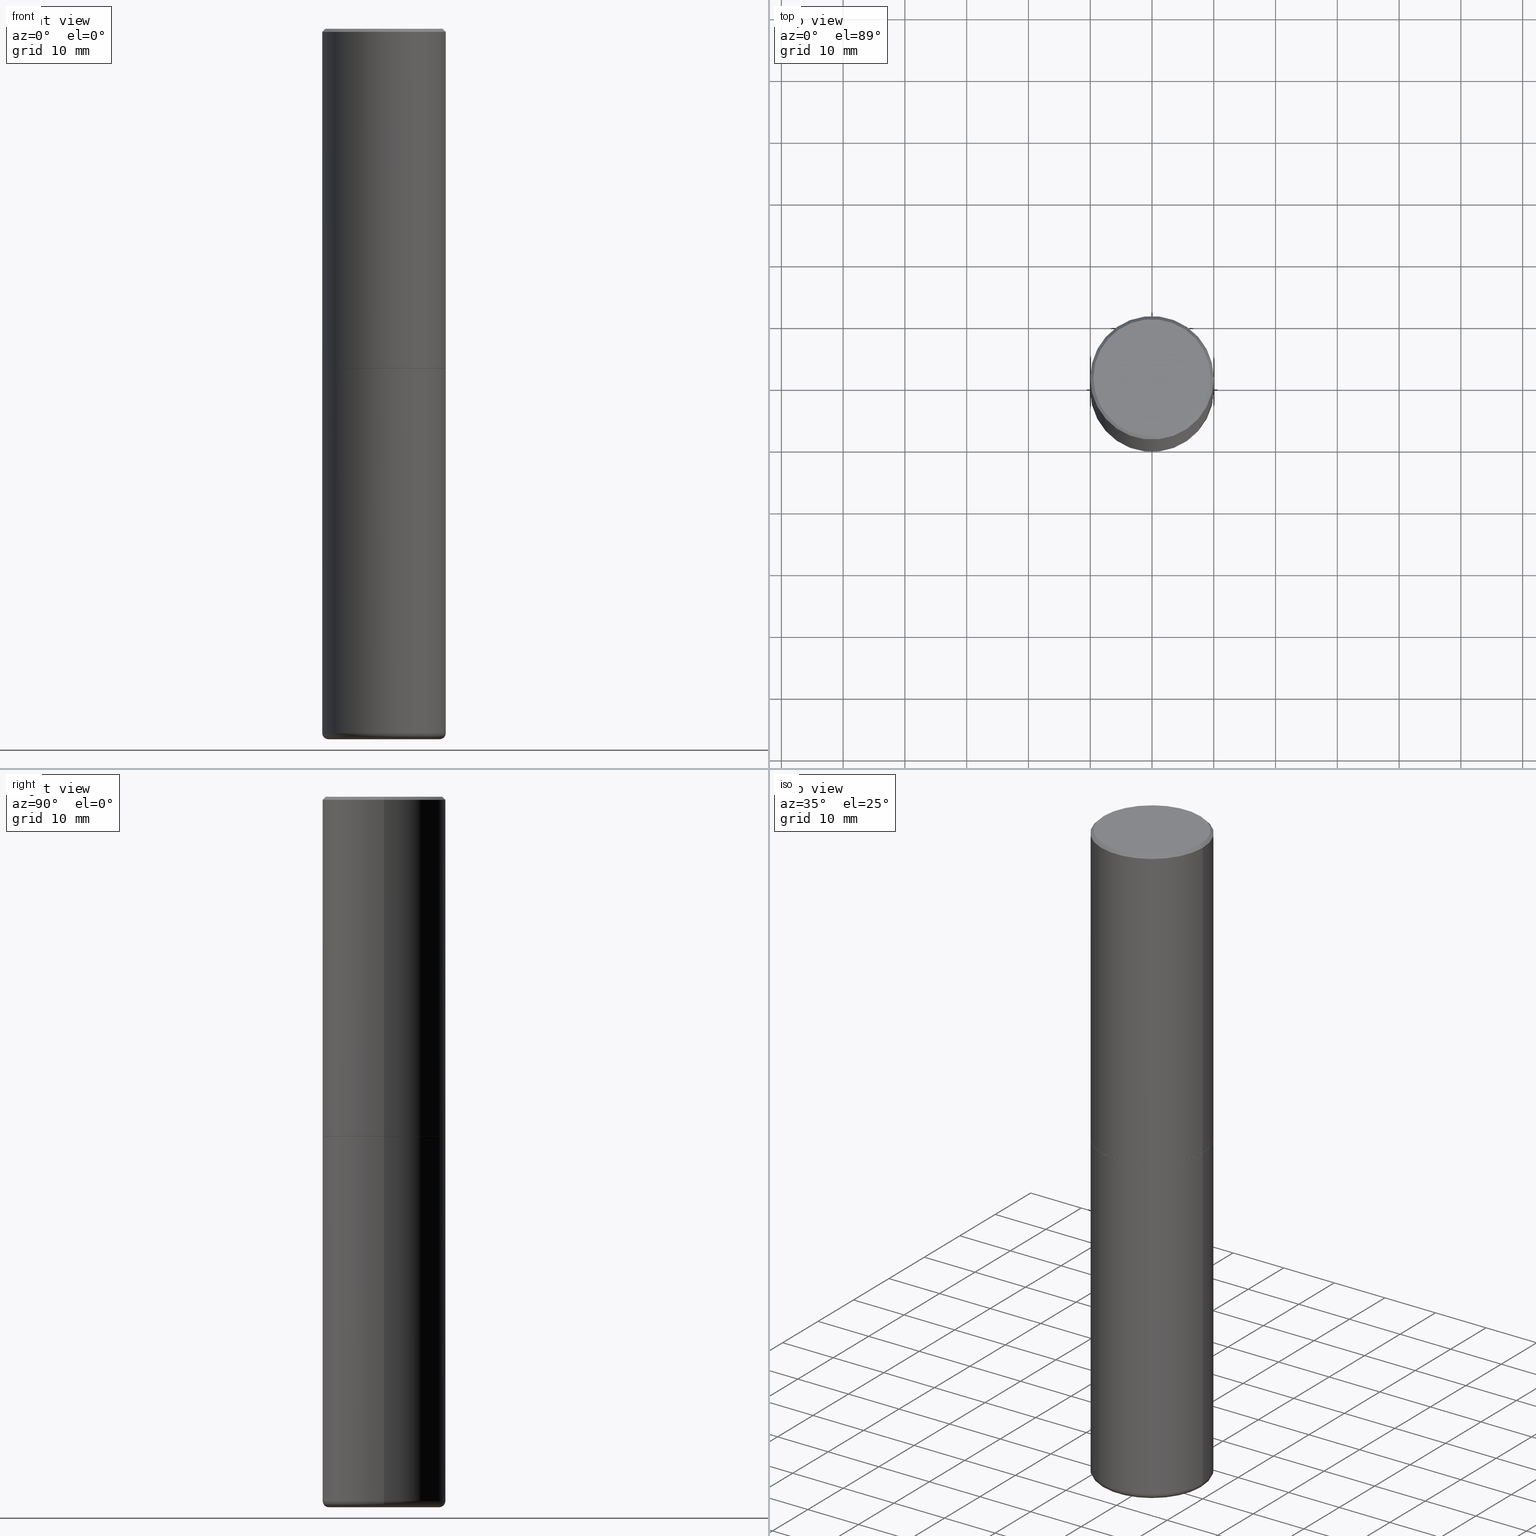
[diagram: canonical four-view strip — front | top / right | iso, engineering-drawing reading convention]
A machine part, canonical four-view strip (front | top / right | iso — engineering-drawing reading convention). The complete STEP part file that produces these views, byte-faithful:
ISO-10303-21;
HEADER;
FILE_DESCRIPTION (( 'STEP AP203' ),
    '1' );
FILE_NAME ('74825.STEP',
    '2024-05-02T19:21:24',
    ( '' ),
    ( '' ),
    'SwSTEP 2.0',
    'SolidWorks 2023',
    '' );
FILE_SCHEMA (( 'CONFIG_CONTROL_DESIGN' ));
ENDSEC;

DATA;
#1 = CIRCLE ( 'NONE', #263, 0.3937000000000002720 ) ;
#2 = APPROVAL_PERSON_ORGANIZATION ( #200, #261, #355 ) ;
#3 = PRODUCT_RELATED_PRODUCT_CATEGORY ( 'detail', '', ( #316 ) ) ;
#4 = LINE ( 'NONE', #9, #206 ) ;
#5 = DIRECTION ( 'NONE',  ( 1.000000000000000000, -6.982962677686268288E-15, 0.000000000000000000 ) ) ;
#6 = CARTESIAN_POINT ( 'NONE',  ( 1.097575309592012950E-28, -1.567046654499580152E-14, -4.488199999999999079 ) ) ;
#7 = CARTESIAN_POINT ( 'NONE',  ( 5.292972684107107621E-29, -7.556962209792102838E-15, -2.164399999999999658 ) ) ;
#8 = CIRCLE ( 'NONE', #145, 0.3937000000000001054 ) ;
#9 = CARTESIAN_POINT ( 'NONE',  ( -0.3926999999999999935, -4.770152367801032067E-15, -2.165399999999999547 ) ) ;
#10 = DIRECTION ( 'NONE',  ( 1.000000000000000000, 0.000000000000000000, 0.000000000000000000 ) ) ;
#11 = ORIENTED_EDGE ( 'NONE', *, *, #184, .T. ) ;
#12 = EDGE_LOOP ( 'NONE', ( #110, #48, #235, #22 ) ) ;
#13 = ADVANCED_BREP_SHAPE_REPRESENTATION ( '74825', ( #346, #197, #416 ), #117 ) ;
#14 = VERTEX_POINT ( 'NONE', #238 ) ;
#15 = VECTOR ( 'NONE', #319, 39.37007874015748143 ) ;
#16 = AXIS2_PLACEMENT_3D ( 'NONE', #143, #175, #26 ) ;
#17 = ORIENTED_EDGE ( 'NONE', *, *, #147, .F. ) ;
#18 = DIRECTION ( 'NONE',  ( -2.445468806185136597E-29, 3.491481338843145583E-15, 1.000000000000000000 ) ) ;
#19 = EDGE_CURVE ( 'NONE', #307, #52, #68, .T. ) ;
#20 = VERTEX_POINT ( 'NONE', #313 ) ;
#21 = DIRECTION ( 'NONE',  ( 1.000000000000000000, -6.982962677686266711E-15, 4.877734241229876808E-29 ) ) ;
#22 = ORIENTED_EDGE ( 'NONE', *, *, #274, .F. ) ;
#23 = AXIS2_PLACEMENT_3D ( 'NONE', #102, #153, #292 ) ;
#24 = EDGE_CURVE ( 'NONE', #165, #272, #380, .T. ) ;
#25 = DIRECTION ( 'NONE',  ( -2.445468806185136597E-29, 3.491481338843145583E-15, 1.000000000000000000 ) ) ;
#26 = DIRECTION ( 'NONE',  ( -1.000000000000000000, 7.105427357601014480E-15, 0.000000000000000000 ) ) ;
#27 = CARTESIAN_POINT ( 'NONE',  ( -0.3937000000000002164, 2.797406750687515970E-15, -1.936584745033357576E-29 ) ) ;
#28 = APPLICATION_CONTEXT ( 'configuration controlled 3d designs of mechanical parts and assemblies' ) ;
#29 = AXIS2_PLACEMENT_3D ( 'NONE', #225, #74, #321 ) ;
#30 = LOCAL_TIME ( 15, 21, 24.00000000000000000, #249 ) ;
#31 = APPLICATION_PROTOCOL_DEFINITION ( 'international standard', 'config_control_design', 1994, #28 ) ;
#32 = PLANE ( 'NONE',  #409 ) ;
#33 = LINE ( 'NONE', #149, #258 ) ;
#34 = CARTESIAN_POINT ( 'NONE',  ( 1.097575309592012950E-28, -1.567046654499580152E-14, -4.488199999999999079 ) ) ;
#35 = CIRCLE ( 'NONE', #251, 0.3937000000000001054 ) ;
#36 = DIRECTION ( 'NONE',  ( 1.000000000000000000, -6.982962677686271444E-15, 4.883557194083114022E-29 ) ) ;
#37 = DIRECTION ( 'NONE',  ( 1.000000000000000000, -6.982962677686266711E-15, 4.877734241229876808E-29 ) ) ;
#38 = CARTESIAN_POINT ( 'NONE',  ( 5.295418152913293224E-29, -7.560453691130945845E-15, -2.165399999999999547 ) ) ;
#39 = LINE ( 'NONE', #262, #151 ) ;
#40 = APPLICATION_CONTEXT ( 'configuration controlled 3d designs of mechanical parts and assemblies' ) ;
#41 = AXIS2_PLACEMENT_3D ( 'NONE', #154, #295, #397 ) ;
#42 = DIRECTION ( 'NONE',  ( -2.445468806185136597E-29, 3.491481338843145583E-15, 1.000000000000000000 ) ) ;
#43 = VERTEX_POINT ( 'NONE', #88 ) ;
#44 = ADVANCED_FACE ( 'NONE', ( #405 ), #188, .T. ) ;
#45 = ORIENTED_EDGE ( 'NONE', *, *, #128, .F. ) ;
#46 = ORIENTED_EDGE ( 'NONE', *, *, #66, .T. ) ;
#47 = CARTESIAN_POINT ( 'NONE',  ( 4.890937612370294178E-31, -6.982962677686321191E-17, -0.02000000000000008715 ) ) ;
#48 = ORIENTED_EDGE ( 'NONE', *, *, #186, .T. ) ;
#49 = DIRECTION ( 'NONE',  ( 1.000000000000000000, -6.982962677686265133E-15, 0.000000000000000000 ) ) ;
#50 = AXIS2_PLACEMENT_3D ( 'NONE', #34, #150, #332 ) ;
#51 = APPROVAL_PERSON_ORGANIZATION ( #59, #159, #412 ) ;
#52 = VERTEX_POINT ( 'NONE', #172 ) ;
#53 = PERSON_AND_ORGANIZATION ( #103, #70 ) ;
#54 = CC_DESIGN_PERSON_AND_ORGANIZATION_ASSIGNMENT ( #404, #239, ( #316 ) ) ;
#55 = VERTEX_POINT ( 'NONE', #162 ) ;
#56 = PRODUCT_DEFINITION_SHAPE ( 'NONE', 'NONE',  #255 ) ;
#57 = COORDINATED_UNIVERSAL_TIME_OFFSET ( 5, 0, .BEHIND. ) ;
#58 = AXIS2_PLACEMENT_3D ( 'NONE', #158, #333, #227 ) ;
#59 = PERSON_AND_ORGANIZATION ( #103, #70 ) ;
#60 = APPROVAL_DATE_TIME ( #140, #261 ) ;
#61 = PLANE ( 'NONE',  #401 ) ;
#62 = EDGE_CURVE ( 'NONE', #43, #167, #395, .T. ) ;
#63 = CIRCLE ( 'NONE', #16, 0.03940000000000005997 ) ;
#64 = FACE_OUTER_BOUND ( 'NONE', #318, .T. ) ;
#65 = DIRECTION ( 'NONE',  ( -0.7071067811866199593, 7.493145998870616062E-15, 0.7071067811864750752 ) ) ;
#66 = EDGE_CURVE ( 'NONE', #307, #402, #232, .T. ) ;
#67 = DIRECTION ( 'NONE',  ( -2.445468806185136877E-29, 3.491481338843145188E-15, 1.000000000000000000 ) ) ;
#68 = CIRCLE ( 'NONE', #342, 0.3937000000000002720 ) ;
#69 = DIRECTION ( 'NONE',  ( -1.000000000000000000, 6.982962677686266711E-15, 0.000000000000000000 ) ) ;
#70 = ORGANIZATION ( 'UNSPECIFIED', 'UNSPECIFIED', '' ) ;
#71 = ADVANCED_FACE ( 'NONE', ( #328 ), #32, .F. ) ;
#72 = CARTESIAN_POINT ( 'NONE',  ( 2.609533152651356620E-15, 0.3736999999999999211, -1.191650995338022328E-15 ) ) ;
#73 = FACE_OUTER_BOUND ( 'NONE', #275, .T. ) ;
#74 = DIRECTION ( 'NONE',  ( -2.445468806185136597E-29, 3.491481338843145583E-15, 1.000000000000000000 ) ) ;
#75 = CYLINDRICAL_SURFACE ( 'NONE', #285, 0.3937000000000002164 ) ;
#76 = DATE_TIME_ROLE ( 'creation_date' ) ;
#77 = TOROIDAL_SURFACE ( 'NONE', #181, 0.3543000000000000038, 0.03940000000000005997 ) ;
#78 = DIRECTION ( 'NONE',  ( 1.000000000000000000, -6.982962677686266711E-15, 0.000000000000000000 ) ) ;
#79 = ORIENTED_EDGE ( 'NONE', *, *, #253, .T. ) ;
#80 = CALENDAR_DATE ( 2024, 2, 5 ) ;
#81 = ORIENTED_EDGE ( 'NONE', *, *, #147, .T. ) ;
#82 = COORDINATED_UNIVERSAL_TIME_OFFSET ( 5, 0, .BEHIND. ) ;
#83 = CARTESIAN_POINT ( 'NONE',  ( 5.295418152913293224E-29, -7.560453691130945845E-15, -2.165399999999999547 ) ) ;
#84 = DATE_AND_TIME ( #378, #364 ) ;
#85 = AXIS2_PLACEMENT_3D ( 'NONE', #6, #217, #124 ) ;
#86 = CIRCLE ( 'NONE', #41, 0.03940000000000005997 ) ;
#87 = CARTESIAN_POINT ( 'NONE',  ( 5.295418152913293224E-29, -7.560453691130945845E-15, -2.165399999999999547 ) ) ;
#88 = CARTESIAN_POINT ( 'NONE',  ( 0.3736999999999999211, -2.667287895133367964E-15, 2.262311619753402158E-16 ) ) ;
#89 = ORIENTED_EDGE ( 'NONE', *, *, #248, .T. ) ;
#90 = CC_DESIGN_PERSON_AND_ORGANIZATION_ASSIGNMENT ( #142, #174, ( #335 ) ) ;
#91 = DIRECTION ( 'NONE',  ( -0.7071067811865454633, 2.468850131082235367E-15, -0.7071067811865495711 ) ) ;
#92 = DIRECTION ( 'NONE',  ( -2.445468806185136877E-29, 3.491481338843145188E-15, 1.000000000000000000 ) ) ;
#93 = DIRECTION ( 'NONE',  ( 1.000000000000000000, -6.982962677686266711E-15, 4.876176775795935793E-29 ) ) ;
#94 = TOROIDAL_SURFACE ( 'NONE', #334, 0.3543000000000000038, 0.03940000000000005997 ) ;
#95 = CC_DESIGN_APPROVAL ( #286, ( #255 ) ) ;
#96 = DIRECTION ( 'NONE',  ( -2.445468806185136597E-29, 3.491481338843145583E-15, 1.000000000000000000 ) ) ;
#97 = CARTESIAN_POINT ( 'NONE',  ( 0.3937000000000000499, -1.030964609733602906E-14, -2.165399999999999547 ) ) ;
#98 = FACE_OUTER_BOUND ( 'NONE', #338, .T. ) ;
#99 = CARTESIAN_POINT ( 'NONE',  ( -0.3937000000000000499, -8.818053367375859687E-15, -2.165399999999999547 ) ) ;
#100 = DIRECTION ( 'NONE',  ( -1.000000000000000000, 6.982962677686265922E-15, -4.876176775795935793E-29 ) ) ;
#101 = CIRCLE ( 'NONE', #108, 0.3937000000000000499 ) ;
#102 = CARTESIAN_POINT ( 'NONE',  ( 0.000000000000000000, 0.000000000000000000, 0.000000000000000000 ) ) ;
#103 = PERSON ( 'UNSPECIFIED', 'UNSPECIFIED', 'UNSPECIFIED', ('UNSPECIFIED'), ('UNSPECIFIED'), ('UNSPECIFIED') ) ;
#104 = CYLINDRICAL_SURFACE ( 'NONE', #29, 0.3937000000000000499 ) ;
#105 = ORIENTED_EDGE ( 'NONE', *, *, #407, .T. ) ;
#106 = ORIENTED_EDGE ( 'NONE', *, *, #128, .T. ) ;
#107 = DIMENSIONAL_EXPONENTS ( 1.000000000000000000, 0.000000000000000000, 0.000000000000000000, 0.000000000000000000, 0.000000000000000000, 0.000000000000000000, 0.000000000000000000 ) ;
#108 = AXIS2_PLACEMENT_3D ( 'NONE', #83, #340, #49 ) ;
#109 = EDGE_LOOP ( 'NONE', ( #131, #135, #277, #170 ) ) ;
#110 = ORIENTED_EDGE ( 'NONE', *, *, #208, .F. ) ;
#111 = ORIENTED_EDGE ( 'NONE', *, *, #398, .F. ) ;
#112 = CARTESIAN_POINT ( 'NONE',  ( -0.3543000000000000038, -1.308181889562823723E-14, -4.527599999999999625 ) ) ;
#113 = EDGE_LOOP ( 'NONE', ( #400, #408, #79, #269 ) ) ;
#114 = FACE_OUTER_BOUND ( 'NONE', #209, .T. ) ;
#115 = LINE ( 'NONE', #250, #390 ) ;
#116 = CIRCLE ( 'NONE', #415, 0.3926999999999999935 ) ;
#117 =( GEOMETRIC_REPRESENTATION_CONTEXT ( 3 ) GLOBAL_UNCERTAINTY_ASSIGNED_CONTEXT ( ( #180 ) ) GLOBAL_UNIT_ASSIGNED_CONTEXT ( ( #393, #354, #283 ) ) REPRESENTATION_CONTEXT ( 'NONE', 'WORKASPACE' ) );
#118 = ADVANCED_FACE ( 'NONE', ( #187 ), #288, .T. ) ;
#119 = EDGE_CURVE ( 'NONE', #371, #52, #4, .T. ) ;
#120 = DIRECTION ( 'NONE',  ( 1.000000000000000000, -6.982962677686265922E-15, 4.876176775795935793E-29 ) ) ;
#121 = DIRECTION ( 'NONE',  ( -2.445468806185136597E-29, 3.491481338843145583E-15, 1.000000000000000000 ) ) ;
#122 = CLOSED_SHELL ( 'NONE', ( #304, #156, #196, #254, #300, #290 ) ) ;
#123 = CARTESIAN_POINT ( 'NONE',  ( 1.097575309592012950E-28, -1.567046654499580152E-14, -4.488199999999999079 ) ) ;
#124 = DIRECTION ( 'NONE',  ( 1.000000000000000000, -6.982962677686262766E-15, 0.000000000000000000 ) ) ;
#125 = DIRECTION ( 'NONE',  ( -1.000000000000000000, 6.982962677686265922E-15, -4.876176775795935793E-29 ) ) ;
#126 = AXIS2_PLACEMENT_3D ( 'NONE', #148, #127, #326 ) ;
#127 = DIRECTION ( 'NONE',  ( -2.445468806185136597E-29, 3.491481338843145583E-15, 1.000000000000000000 ) ) ;
#128 = EDGE_CURVE ( 'NONE', #272, #165, #241, .T. ) ;
#129 = ORIENTED_EDGE ( 'NONE', *, *, #193, .T. ) ;
#130 = ORIENTED_EDGE ( 'NONE', *, *, #257, .F. ) ;
#131 = ORIENTED_EDGE ( 'NONE', *, *, #19, .T. ) ;
#132 = ORIENTED_EDGE ( 'NONE', *, *, #164, .T. ) ;
#133 = PERSON_AND_ORGANIZATION ( #103, #70 ) ;
#134 = VECTOR ( 'NONE', #92, 39.37007874015748143 ) ;
#135 = ORIENTED_EDGE ( 'NONE', *, *, #418, .T. ) ;
#136 = DIRECTION ( 'NONE',  ( -2.445468806185136597E-29, 3.491481338843145583E-15, 1.000000000000000000 ) ) ;
#137 = ORIENTED_EDGE ( 'NONE', *, *, #24, .T. ) ;
#138 = SECURITY_CLASSIFICATION_LEVEL ( 'unclassified' ) ;
#139 = EDGE_LOOP ( 'NONE', ( #374, #129, #376, #201 ) ) ;
#140 = DATE_AND_TIME ( #381, #146 ) ;
#141 = CARTESIAN_POINT ( 'NONE',  ( 1.107210456688382298E-28, -1.580803090974622389E-14, -4.527599999999999625 ) ) ;
#142 = PERSON_AND_ORGANIZATION ( #103, #70 ) ;
#143 = CARTESIAN_POINT ( 'NONE',  ( -0.3543000000000000038, -1.315301363219776772E-14, -4.488199999999999079 ) ) ;
#144 = CYLINDRICAL_SURFACE ( 'NONE', #273, 0.3937000000000000499 ) ;
#145 = AXIS2_PLACEMENT_3D ( 'NONE', #312, #18, #157 ) ;
#146 = LOCAL_TIME ( 15, 21, 24.00000000000000000, #352 ) ;
#147 = EDGE_CURVE ( 'NONE', #20, #371, #310, .T. ) ;
#148 = CARTESIAN_POINT ( 'NONE',  ( 1.107210456688382298E-28, -1.580803090974622389E-14, -4.527599999999999625 ) ) ;
#149 = CARTESIAN_POINT ( 'NONE',  ( 0.3926999999999999935, -1.030266313465834305E-14, -2.165399999999999547 ) ) ;
#150 = DIRECTION ( 'NONE',  ( -2.445468806185136597E-29, 3.491481338843145583E-15, 1.000000000000000000 ) ) ;
#151 = VECTOR ( 'NONE', #396, 39.37007874015748143 ) ;
#152 = DIRECTION ( 'NONE',  ( -2.445468806185136597E-29, 3.491481338843145583E-15, 1.000000000000000000 ) ) ;
#153 = DIRECTION ( 'NONE',  ( -2.445468806185136597E-29, 3.491481338843145583E-15, 1.000000000000000000 ) ) ;
#154 = CARTESIAN_POINT ( 'NONE',  ( 0.3543000000000000038, -1.814453022170004631E-14, -4.488199999999999079 ) ) ;
#155 = DIRECTION ( 'NONE',  ( 2.438088387897960049E-29, -3.491481338843145188E-15, -1.000000000000000000 ) ) ;
#156 = ADVANCED_FACE ( 'NONE', ( #73 ), #77, .T. ) ;
#157 = DIRECTION ( 'NONE',  ( 1.000000000000000000, -6.982962677686266711E-15, 0.000000000000000000 ) ) ;
#158 = CARTESIAN_POINT ( 'NONE',  ( 5.295418152913293224E-29, -7.560453691130945845E-15, -2.165399999999999547 ) ) ;
#159 = APPROVAL ( #281, 'UNSPECIFIED' ) ;
#160 = CLOSED_SHELL ( 'NONE', ( #226, #118, #44, #361, #244, #351, #350, #71 ) ) ;
#161 = VERTEX_POINT ( 'NONE', #256 ) ;
#162 = CARTESIAN_POINT ( 'NONE',  ( -0.3937000000000001054, 2.679362779428220707E-15, -0.02000000000000008715 ) ) ;
#163 = ORIENTED_EDGE ( 'NONE', *, *, #24, .F. ) ;
#164 = EDGE_CURVE ( 'NONE', #52, #307, #1, .T. ) ;
#165 = VERTEX_POINT ( 'NONE', #331 ) ;
#166 = ORIENTED_EDGE ( 'NONE', *, *, #274, .T. ) ;
#167 = VERTEX_POINT ( 'NONE', #294 ) ;
#168 = CIRCLE ( 'NONE', #85, 0.3937000000000000499 ) ;
#169 = LOCAL_TIME ( 15, 21, 24.00000000000000000, #57 ) ;
#170 = ORIENTED_EDGE ( 'NONE', *, *, #66, .F. ) ;
#171 = DIRECTION ( 'NONE',  ( 2.438088387897960049E-29, -3.491481338843145188E-15, -1.000000000000000000 ) ) ;
#172 = CARTESIAN_POINT ( 'NONE',  ( -0.3937000000000002720, -1.015989167596965718E-15, -2.164399999999999658 ) ) ;
#173 = ORIENTED_EDGE ( 'NONE', *, *, #208, .T. ) ;
#174 = PERSON_AND_ORGANIZATION_ROLE ( 'classification_officer' ) ;
#175 = DIRECTION ( 'NONE',  ( 7.105427357601001859E-15, 1.000000000000000000, -3.491481338843145583E-15 ) ) ;
#176 = CIRCLE ( 'NONE', #252, 0.3736999999999999211 ) ;
#177 = LINE ( 'NONE', #322, #15 ) ;
#178 = CARTESIAN_POINT ( 'NONE',  ( 5.295418152913293224E-29, -7.560453691130945845E-15, -2.165399999999999547 ) ) ;
#179 = CC_DESIGN_PERSON_AND_ORGANIZATION_ASSIGNMENT ( #53, #315, ( #343 ) ) ;
#180 = UNCERTAINTY_MEASURE_WITH_UNIT (LENGTH_MEASURE( 1.000000000000000082E-05 ), #393, 'distance_accuracy_value', 'NONE');
#181 = AXIS2_PLACEMENT_3D ( 'NONE', #123, #121, #36 ) ;
#182 = DATE_AND_TIME ( #385, #30 ) ;
#183 = CARTESIAN_POINT ( 'NONE',  ( 4.890937612370294178E-31, -6.982962677686321191E-17, -0.02000000000000008715 ) ) ;
#184 = EDGE_CURVE ( 'NONE', #14, #161, #168, .T. ) ;
#185 = DIRECTION ( 'NONE',  ( 1.000000000000000000, -6.982962677686266711E-15, 0.000000000000000000 ) ) ;
#186 = EDGE_CURVE ( 'NONE', #161, #14, #234, .T. ) ;
#187 = FACE_OUTER_BOUND ( 'NONE', #109, .T. ) ;
#188 = CONICAL_SURFACE ( 'NONE', #363, 0.3937000000000001054, 0.7853981633974453924 ) ;
#189 = AXIS2_PLACEMENT_3D ( 'NONE', #357, #287, #69 ) ;
#190 = CC_DESIGN_APPROVAL ( #159, ( #335 ) ) ;
#191 = CARTESIAN_POINT ( 'NONE',  ( -5.532412495976664402E-45, 7.898818803016371119E-31, 2.262311619753217762E-16 ) ) ;
#192 = CARTESIAN_POINT ( 'NONE',  ( 0.000000000000000000, 0.000000000000000000, 0.000000000000000000 ) ) ;
#193 = EDGE_CURVE ( 'NONE', #371, #20, #116, .T. ) ;
#194 = CARTESIAN_POINT ( 'NONE',  ( 5.295418152913293224E-29, -7.560453691130945845E-15, -2.165399999999999547 ) ) ;
#195 = DIRECTION ( 'NONE',  ( -2.445468806185136597E-29, 3.491481338843145583E-15, 1.000000000000000000 ) ) ;
#196 = ADVANCED_FACE ( 'NONE', ( #98 ), #360, .F. ) ;
#197 = MANIFOLD_SOLID_BREP ( 'Body-Move/Copy2[2]', #160 ) ;
#198 = CARTESIAN_POINT ( 'NONE',  ( 0.000000000000000000, 0.000000000000000000, 0.000000000000000000 ) ) ;
#199 = ORIENTED_EDGE ( 'NONE', *, *, #366, .T. ) ;
#200 = PERSON_AND_ORGANIZATION ( #103, #70 ) ;
#201 = ORIENTED_EDGE ( 'NONE', *, *, #164, .F. ) ;
#202 = APPROVAL_DATE_TIME ( #230, #286 ) ;
#203 = EDGE_LOOP ( 'NONE', ( #11, #173, #240, #111 ) ) ;
#204 = PERSON_AND_ORGANIZATION ( #103, #70 ) ;
#205 = ORIENTED_EDGE ( 'NONE', *, *, #366, .F. ) ;
#206 = VECTOR ( 'NONE', #65, 39.37007874015748143 ) ;
#207 = PLANE ( 'NONE',  #278 ) ;
#208 = EDGE_CURVE ( 'NONE', #161, #383, #39, .T. ) ;
#209 = EDGE_LOOP ( 'NONE', ( #163, #45 ) ) ;
#210 = CC_DESIGN_DATE_AND_TIME_ASSIGNMENT ( #384, #320, ( #335 ) ) ;
#211 = ORIENTED_EDGE ( 'NONE', *, *, #418, .F. ) ;
#212 = CARTESIAN_POINT ( 'NONE',  ( 0.000000000000000000, 0.000000000000000000, 0.000000000000000000 ) ) ;
#213 = AXIS2_PLACEMENT_3D ( 'NONE', #358, #325, #5 ) ;
#214 = FACE_OUTER_BOUND ( 'NONE', #336, .T. ) ;
#215 = AXIS2_PLACEMENT_3D ( 'NONE', #194, #220, #365 ) ;
#216 = LOCAL_TIME ( 15, 21, 24.00000000000000000, #82 ) ;
#217 = DIRECTION ( 'NONE',  ( -2.445468806185136597E-29, 3.491481338843145583E-15, 1.000000000000000000 ) ) ;
#218 = DIRECTION ( 'NONE',  ( 0.7071067811866199593, -2.468850131083015945E-15, 0.7071067811864750752 ) ) ;
#219 = CARTESIAN_POINT ( 'NONE',  ( 0.3937000000000000499, -2.749192406205083217E-15, 1.919750796630860172E-29 ) ) ;
#220 = DIRECTION ( 'NONE',  ( -2.445468806185136597E-29, 3.491481338843145583E-15, 1.000000000000000000 ) ) ;
#221 = AXIS2_PLACEMENT_3D ( 'NONE', #38, #155, #125 ) ;
#222 = LINE ( 'NONE', #27, #134 ) ;
#223 =( LENGTH_UNIT ( ) NAMED_UNIT ( * ) SI_UNIT ( $, .METRE. ) );
#224 = DIRECTION ( 'NONE',  ( 1.000000000000000000, -6.982962677686269077E-15, 0.000000000000000000 ) ) ;
#225 = CARTESIAN_POINT ( 'NONE',  ( 0.000000000000000000, 0.000000000000000000, 0.000000000000000000 ) ) ;
#226 = ADVANCED_FACE ( 'NONE', ( #367 ), #298, .T. ) ;
#227 = DIRECTION ( 'NONE',  ( 1.000000000000000000, -6.982962677686268288E-15, 0.000000000000000000 ) ) ;
#228 = ORIENTED_EDGE ( 'NONE', *, *, #271, .F. ) ;
#229 = SHAPE_DEFINITION_REPRESENTATION ( #56, #13 ) ;
#230 = DATE_AND_TIME ( #80, #216 ) ;
#231 = ORIENTED_EDGE ( 'NONE', *, *, #271, .T. ) ;
#232 = LINE ( 'NONE', #306, #329 ) ;
#233 = ORIENTED_EDGE ( 'NONE', *, *, #119, .T. ) ;
#234 = CIRCLE ( 'NONE', #50, 0.3937000000000000499 ) ;
#235 = ORIENTED_EDGE ( 'NONE', *, *, #398, .T. ) ;
#236 = DESIGN_CONTEXT ( 'detailed design', #40, 'design' ) ;
#237 = ORIENTED_EDGE ( 'NONE', *, *, #308, .T. ) ;
#238 = CARTESIAN_POINT ( 'NONE',  ( 0.3937000000000001054, -1.841965895120088790E-14, -4.488199999999999079 ) ) ;
#239 = PERSON_AND_ORGANIZATION_ROLE ( 'design_owner' ) ;
#240 = ORIENTED_EDGE ( 'NONE', *, *, #248, .F. ) ;
#241 = CIRCLE ( 'NONE', #126, 0.3543000000000000038 ) ;
#242 = FACE_OUTER_BOUND ( 'NONE', #268, .T. ) ;
#243 = CC_DESIGN_SECURITY_CLASSIFICATION ( #335, ( #343 ) ) ;
#244 = ADVANCED_FACE ( 'NONE', ( #368 ), #75, .T. ) ;
#245 = ORIENTED_EDGE ( 'NONE', *, *, #414, .F. ) ;
#246 = CALENDAR_DATE ( 2024, 2, 5 ) ;
#247 = FACE_OUTER_BOUND ( 'NONE', #203, .T. ) ;
#248 = EDGE_CURVE ( 'NONE', #403, #383, #101, .T. ) ;
#249 = COORDINATED_UNIVERSAL_TIME_OFFSET ( 5, 0, .BEHIND. ) ;
#250 = CARTESIAN_POINT ( 'NONE',  ( -0.3937000000000001054, 2.679362779428220707E-15, -0.02000000000000008715 ) ) ;
#251 = AXIS2_PLACEMENT_3D ( 'NONE', #183, #152, #185 ) ;
#252 = AXIS2_PLACEMENT_3D ( 'NONE', #191, #330, #37 ) ;
#253 = EDGE_CURVE ( 'NONE', #402, #55, #8, .T. ) ;
#254 = ADVANCED_FACE ( 'NONE', ( #297 ), #104, .T. ) ;
#255 = PRODUCT_DEFINITION ( 'UNKNOWN', '', #343, #236 ) ;
#256 = CARTESIAN_POINT ( 'NONE',  ( -0.3937000000000001054, -1.287305979430828910E-14, -4.488199999999999079 ) ) ;
#257 = EDGE_CURVE ( 'NONE', #43, #402, #177, .T. ) ;
#258 = VECTOR ( 'NONE', #218, 39.37007874015748143 ) ;
#259 = CARTESIAN_POINT ( 'NONE',  ( 5.295418152913293224E-29, -7.560453691130945845E-15, -2.165399999999999547 ) ) ;
#260 = DIRECTION ( 'NONE',  ( 1.000000000000000000, -6.982962677686268288E-15, 0.000000000000000000 ) ) ;
#261 = APPROVAL ( #348, 'UNSPECIFIED' ) ;
#262 = CARTESIAN_POINT ( 'NONE',  ( -0.3937000000000000499, 2.797406750687514786E-15, -1.936584745033356735E-29 ) ) ;
#263 = AXIS2_PLACEMENT_3D ( 'NONE', #7, #96, #224 ) ;
#264 = DIRECTION ( 'NONE',  ( 1.000000000000000000, -6.982962677686269077E-15, 0.000000000000000000 ) ) ;
#265 = APPROVAL_ROLE ( '' ) ;
#266 = APPROVAL_DATE_TIME ( #182, #159 ) ;
#267 = APPROVAL_STATUS ( 'not_yet_approved' ) ;
#268 = EDGE_LOOP ( 'NONE', ( #228, #106, #399, #369 ) ) ;
#269 = ORIENTED_EDGE ( 'NONE', *, *, #308, .F. ) ;
#270 = MECHANICAL_CONTEXT ( 'NONE', #28, 'mechanical' ) ;
#271 = EDGE_CURVE ( 'NONE', #272, #161, #63, .T. ) ;
#272 = VERTEX_POINT ( 'NONE', #112 ) ;
#273 = AXIS2_PLACEMENT_3D ( 'NONE', #212, #282, #413 ) ;
#274 = EDGE_CURVE ( 'NONE', #383, #403, #359, .T. ) ;
#275 = EDGE_LOOP ( 'NONE', ( #137, #231, #303, #245 ) ) ;
#276 = ORIENTED_EDGE ( 'NONE', *, *, #19, .F. ) ;
#277 = ORIENTED_EDGE ( 'NONE', *, *, #253, .F. ) ;
#278 = AXIS2_PLACEMENT_3D ( 'NONE', #141, #171, #356 ) ;
#279 = CARTESIAN_POINT ( 'NONE',  ( 1.097575309592012950E-28, -1.567046654499580152E-14, -4.488199999999999079 ) ) ;
#280 = APPROVAL_PERSON_ORGANIZATION ( #133, #286, #265 ) ;
#281 = APPROVAL_STATUS ( 'not_yet_approved' ) ;
#282 = DIRECTION ( 'NONE',  ( -2.445468806185136597E-29, 3.491481338843145583E-15, 1.000000000000000000 ) ) ;
#283 =( NAMED_UNIT ( * ) SI_UNIT ( $, .STERADIAN. ) SOLID_ANGLE_UNIT ( ) );
#284 = CC_DESIGN_PERSON_AND_ORGANIZATION_ASSIGNMENT ( #388, #344, ( #343 ) ) ;
#285 = AXIS2_PLACEMENT_3D ( 'NONE', #198, #42, #93 ) ;
#286 = APPROVAL ( #267, 'UNSPECIFIED' ) ;
#287 = DIRECTION ( 'NONE',  ( 2.445468806185136597E-29, -3.491481338843145583E-15, -1.000000000000000000 ) ) ;
#288 = CYLINDRICAL_SURFACE ( 'NONE', #23, 0.3937000000000002164 ) ;
#289 = LINE ( 'NONE', #219, #299 ) ;
#290 = ADVANCED_FACE ( 'NONE', ( #114 ), #207, .T. ) ;
#291 = AXIS2_PLACEMENT_3D ( 'NONE', #87, #25, #345 ) ;
#292 = DIRECTION ( 'NONE',  ( 1.000000000000000000, -6.982962677686266711E-15, 4.876176775795935793E-29 ) ) ;
#293 = CARTESIAN_POINT ( 'NONE',  ( -0.3926999999999999935, -4.764853913452808876E-15, -2.165399999999999547 ) ) ;
#294 = CARTESIAN_POINT ( 'NONE',  ( -0.3736999999999999211, 2.644447966039789453E-15, 2.262311619753034352E-16 ) ) ;
#295 = DIRECTION ( 'NONE',  ( -6.982962677686266711E-15, -1.000000000000000000, 3.491481338843145583E-15 ) ) ;
#296 = DIRECTION ( 'NONE',  ( 0.000000000000000000, 0.000000000000000000, 1.000000000000000000 ) ) ;
#297 = FACE_OUTER_BOUND ( 'NONE', #12, .T. ) ;
#298 = CONICAL_SURFACE ( 'NONE', #58, 0.3926999999999999935, 0.7853981633975507526 ) ;
#299 = VECTOR ( 'NONE', #391, 39.37007874015748143 ) ;
#300 = ADVANCED_FACE ( 'NONE', ( #242 ), #94, .T. ) ;
#301 = ORIENTED_EDGE ( 'NONE', *, *, #389, .F. ) ;
#302 = DIRECTION ( 'NONE',  ( -2.445468806185136597E-29, 3.491481338843145583E-15, 1.000000000000000000 ) ) ;
#303 = ORIENTED_EDGE ( 'NONE', *, *, #184, .F. ) ;
#304 = ADVANCED_FACE ( 'NONE', ( #247 ), #144, .T. ) ;
#305 = EDGE_LOOP ( 'NONE', ( #105, #406 ) ) ;
#306 = CARTESIAN_POINT ( 'NONE',  ( 0.3937000000000002164, -2.749192406205084794E-15, 1.919750796630861012E-29 ) ) ;
#307 = VERTEX_POINT ( 'NONE', #387 ) ;
#308 = EDGE_CURVE ( 'NONE', #167, #55, #115, .T. ) ;
#309 = ORIENTED_EDGE ( 'NONE', *, *, #407, .F. ) ;
#310 = CIRCLE ( 'NONE', #215, 0.3926999999999999935 ) ;
#311 = CC_DESIGN_APPROVAL ( #261, ( #343 ) ) ;
#312 = CARTESIAN_POINT ( 'NONE',  ( 4.890937612370294178E-31, -6.982962677686321191E-17, -0.02000000000000008715 ) ) ;
#313 = CARTESIAN_POINT ( 'NONE',  ( 0.3926999999999999935, -1.030266313465834305E-14, -2.165399999999999547 ) ) ;
#314 = EDGE_LOOP ( 'NONE', ( #211, #132, #46, #205 ) ) ;
#315 = PERSON_AND_ORGANIZATION_ROLE ( 'design_supplier' ) ;
#316 = PRODUCT ( '74825', '74825', '', ( #270 ) ) ;
#317 = CARTESIAN_POINT ( 'NONE',  ( -5.532412495976664402E-45, 7.898818803016371119E-31, 2.262311619753217762E-16 ) ) ;
#318 = EDGE_LOOP ( 'NONE', ( #130, #309, #237, #199 ) ) ;
#319 = DIRECTION ( 'NONE',  ( 0.7071067811865454633, -7.319954787623248157E-15, -0.7071067811865495711 ) ) ;
#320 = DATE_TIME_ROLE ( 'classification_date' ) ;
#321 = DIRECTION ( 'NONE',  ( 1.000000000000000000, -6.982962677686265922E-15, 4.876176775795935793E-29 ) ) ;
#322 = CARTESIAN_POINT ( 'NONE',  ( 0.3937000000000001054, -2.770807688499516128E-15, -0.02000000000000008715 ) ) ;
#323 = DIRECTION ( 'NONE',  ( -2.438088387897960049E-29, 3.491481338843145188E-15, 1.000000000000000000 ) ) ;
#324 = AXIS2_PLACEMENT_3D ( 'NONE', #373, #136, #78 ) ;
#325 = DIRECTION ( 'NONE',  ( -2.445468806185136597E-29, 3.491481338843145583E-15, 1.000000000000000000 ) ) ;
#326 = DIRECTION ( 'NONE',  ( 1.000000000000000000, -6.982962677686266711E-15, 0.000000000000000000 ) ) ;
#327 = FACE_OUTER_BOUND ( 'NONE', #139, .T. ) ;
#328 = FACE_OUTER_BOUND ( 'NONE', #305, .T. ) ;
#329 = VECTOR ( 'NONE', #67, 39.37007874015748143 ) ;
#330 = DIRECTION ( 'NONE',  ( -2.445468806185136597E-29, 3.491481338843145583E-15, 1.000000000000000000 ) ) ;
#331 = CARTESIAN_POINT ( 'NONE',  ( 0.3543000000000000038, -1.828209458645046868E-14, -4.527599999999999625 ) ) ;
#332 = DIRECTION ( 'NONE',  ( 1.000000000000000000, -6.982962677686262766E-15, 0.000000000000000000 ) ) ;
#333 = DIRECTION ( 'NONE',  ( -2.445468806185136597E-29, 3.491481338843145583E-15, 1.000000000000000000 ) ) ;
#334 = AXIS2_PLACEMENT_3D ( 'NONE', #279, #410, #382 ) ;
#335 = SECURITY_CLASSIFICATION ( '', '', #138 ) ;
#336 = EDGE_LOOP ( 'NONE', ( #17, #337 ) ) ;
#337 = ORIENTED_EDGE ( 'NONE', *, *, #193, .F. ) ;
#338 = EDGE_LOOP ( 'NONE', ( #89, #166 ) ) ;
#339 = COORDINATED_UNIVERSAL_TIME_OFFSET ( 5, 0, .BEHIND. ) ;
#340 = DIRECTION ( 'NONE',  ( -2.445468806185136597E-29, 3.491481338843145583E-15, 1.000000000000000000 ) ) ;
#341 = CC_DESIGN_DATE_AND_TIME_ASSIGNMENT ( #84, #76, ( #255 ) ) ;
#342 = AXIS2_PLACEMENT_3D ( 'NONE', #377, #195, #264 ) ;
#343 = PRODUCT_DEFINITION_FORMATION_WITH_SPECIFIED_SOURCE ( 'ANY', '', #316, .NOT_KNOWN. ) ;
#344 = PERSON_AND_ORGANIZATION_ROLE ( 'creator' ) ;
#345 = DIRECTION ( 'NONE',  ( 1.000000000000000000, -6.982962677686265133E-15, 0.000000000000000000 ) ) ;
#346 = MANIFOLD_SOLID_BREP ( 'Body-Move/Copy2[1]', #122 ) ;
#347 = DIRECTION ( 'NONE',  ( 2.445468806185136597E-29, -3.491481338843145583E-15, -1.000000000000000000 ) ) ;
#348 = APPROVAL_STATUS ( 'not_yet_approved' ) ;
#349 = DIRECTION ( 'NONE',  ( -1.000000000000000000, 6.982962677686266711E-15, 0.000000000000000000 ) ) ;
#350 = ADVANCED_FACE ( 'NONE', ( #214 ), #61, .F. ) ;
#351 = ADVANCED_FACE ( 'NONE', ( #327 ), #353, .T. ) ;
#352 = COORDINATED_UNIVERSAL_TIME_OFFSET ( 5, 0, .BEHIND. ) ;
#353 = CONICAL_SURFACE ( 'NONE', #213, 0.3926999999999999935, 0.7853981633975507526 ) ;
#354 =( NAMED_UNIT ( * ) PLANE_ANGLE_UNIT ( ) SI_UNIT ( $, .RADIAN. ) );
#355 = APPROVAL_ROLE ( '' ) ;
#356 = DIRECTION ( 'NONE',  ( -1.000000000000000000, 6.982962677686265922E-15, -4.876176775795935793E-29 ) ) ;
#357 = CARTESIAN_POINT ( 'NONE',  ( 4.890937612370294178E-31, -6.982962677686321191E-17, -0.02000000000000008715 ) ) ;
#358 = CARTESIAN_POINT ( 'NONE',  ( 5.295418152913293224E-29, -7.560453691130945845E-15, -2.165399999999999547 ) ) ;
#359 = CIRCLE ( 'NONE', #291, 0.3937000000000000499 ) ;
#360 = PLANE ( 'NONE',  #221 ) ;
#361 = ADVANCED_FACE ( 'NONE', ( #64 ), #386, .T. ) ;
#362 = CARTESIAN_POINT ( 'NONE',  ( 0.3937000000000001054, -2.770807688499516128E-15, -0.02000000000000008715 ) ) ;
#363 = AXIS2_PLACEMENT_3D ( 'NONE', #47, #347, #349 ) ;
#364 = LOCAL_TIME ( 15, 21, 24.00000000000000000, #339 ) ;
#365 = DIRECTION ( 'NONE',  ( 1.000000000000000000, -6.982962677686268288E-15, 0.000000000000000000 ) ) ;
#366 = EDGE_CURVE ( 'NONE', #55, #402, #35, .T. ) ;
#367 = FACE_OUTER_BOUND ( 'NONE', #379, .T. ) ;
#368 = FACE_OUTER_BOUND ( 'NONE', #314, .T. ) ;
#369 = ORIENTED_EDGE ( 'NONE', *, *, #186, .F. ) ;
#370 = PERSON_AND_ORGANIZATION_ROLE ( 'creator' ) ;
#371 = VERTEX_POINT ( 'NONE', #293 ) ;
#372 = AXIS2_PLACEMENT_3D ( 'NONE', #317, #302, #21 ) ;
#373 = CARTESIAN_POINT ( 'NONE',  ( 1.107210456688382298E-28, -1.580803090974622389E-14, -4.527599999999999625 ) ) ;
#374 = ORIENTED_EDGE ( 'NONE', *, *, #119, .F. ) ;
#375 = APPLICATION_PROTOCOL_DEFINITION ( 'international standard', 'config_control_design', 1994, #40 ) ;
#376 = ORIENTED_EDGE ( 'NONE', *, *, #389, .T. ) ;
#377 = CARTESIAN_POINT ( 'NONE',  ( 5.292972684107107621E-29, -7.556962209792102838E-15, -2.164399999999999658 ) ) ;
#378 = CALENDAR_DATE ( 2024, 2, 5 ) ;
#379 = EDGE_LOOP ( 'NONE', ( #81, #233, #276, #301 ) ) ;
#380 = CIRCLE ( 'NONE', #324, 0.3543000000000000038 ) ;
#381 = CALENDAR_DATE ( 2024, 2, 5 ) ;
#382 = DIRECTION ( 'NONE',  ( 1.000000000000000000, -6.982962677686271444E-15, 4.883557194083114022E-29 ) ) ;
#383 = VERTEX_POINT ( 'NONE', #99 ) ;
#384 = DATE_AND_TIME ( #246, #169 ) ;
#385 = CALENDAR_DATE ( 2024, 2, 5 ) ;
#386 = CONICAL_SURFACE ( 'NONE', #189, 0.3937000000000001054, 0.7853981633974453924 ) ;
#387 = CARTESIAN_POINT ( 'NONE',  ( 0.3937000000000002720, -1.030615461599718763E-14, -2.164399999999999658 ) ) ;
#388 = PERSON_AND_ORGANIZATION ( #103, #70 ) ;
#389 = EDGE_CURVE ( 'NONE', #20, #307, #33, .T. ) ;
#390 = VECTOR ( 'NONE', #91, 39.37007874015748143 ) ;
#391 = DIRECTION ( 'NONE',  ( -2.445468806185136877E-29, 3.491481338843145188E-15, 1.000000000000000000 ) ) ;
#392 = DIRECTION ( 'NONE',  ( -2.445468806185136597E-29, 3.491481338843145583E-15, 1.000000000000000000 ) ) ;
#393 =( CONVERSION_BASED_UNIT ( 'INCH', #417 ) LENGTH_UNIT ( ) NAMED_UNIT ( #107 ) );
#394 = DIRECTION ( 'NONE',  ( 2.438088387897960049E-29, -3.491481338843145188E-15, -1.000000000000000000 ) ) ;
#395 = CIRCLE ( 'NONE', #372, 0.3736999999999999211 ) ;
#396 = DIRECTION ( 'NONE',  ( -2.445468806185136877E-29, 3.491481338843145188E-15, 1.000000000000000000 ) ) ;
#397 = DIRECTION ( 'NONE',  ( 1.000000000000000000, -6.982962677686317987E-15, 0.000000000000000000 ) ) ;
#398 = EDGE_CURVE ( 'NONE', #14, #403, #289, .T. ) ;
#399 = ORIENTED_EDGE ( 'NONE', *, *, #414, .T. ) ;
#400 = ORIENTED_EDGE ( 'NONE', *, *, #62, .F. ) ;
#401 = AXIS2_PLACEMENT_3D ( 'NONE', #178, #323, #120 ) ;
#402 = VERTEX_POINT ( 'NONE', #362 ) ;
#403 = VERTEX_POINT ( 'NONE', #97 ) ;
#404 = PERSON_AND_ORGANIZATION ( #103, #70 ) ;
#405 = FACE_OUTER_BOUND ( 'NONE', #113, .T. ) ;
#406 = ORIENTED_EDGE ( 'NONE', *, *, #62, .T. ) ;
#407 = EDGE_CURVE ( 'NONE', #167, #43, #176, .T. ) ;
#408 = ORIENTED_EDGE ( 'NONE', *, *, #257, .T. ) ;
#409 = AXIS2_PLACEMENT_3D ( 'NONE', #72, #394, #100 ) ;
#410 = DIRECTION ( 'NONE',  ( -2.445468806185136597E-29, 3.491481338843145583E-15, 1.000000000000000000 ) ) ;
#411 = CC_DESIGN_PERSON_AND_ORGANIZATION_ASSIGNMENT ( #204, #370, ( #255 ) ) ;
#412 = APPROVAL_ROLE ( '' ) ;
#413 = DIRECTION ( 'NONE',  ( 1.000000000000000000, -6.982962677686265922E-15, 4.876176775795935793E-29 ) ) ;
#414 = EDGE_CURVE ( 'NONE', #165, #14, #86, .T. ) ;
#415 = AXIS2_PLACEMENT_3D ( 'NONE', #259, #392, #260 ) ;
#416 = AXIS2_PLACEMENT_3D ( 'NONE', #192, #296, #10 ) ;
#417 = LENGTH_MEASURE_WITH_UNIT ( LENGTH_MEASURE( 0.02539999999999999897 ), #223 );
#418 = EDGE_CURVE ( 'NONE', #52, #55, #222, .T. ) ;
ENDSEC;
END-ISO-10303-21;
